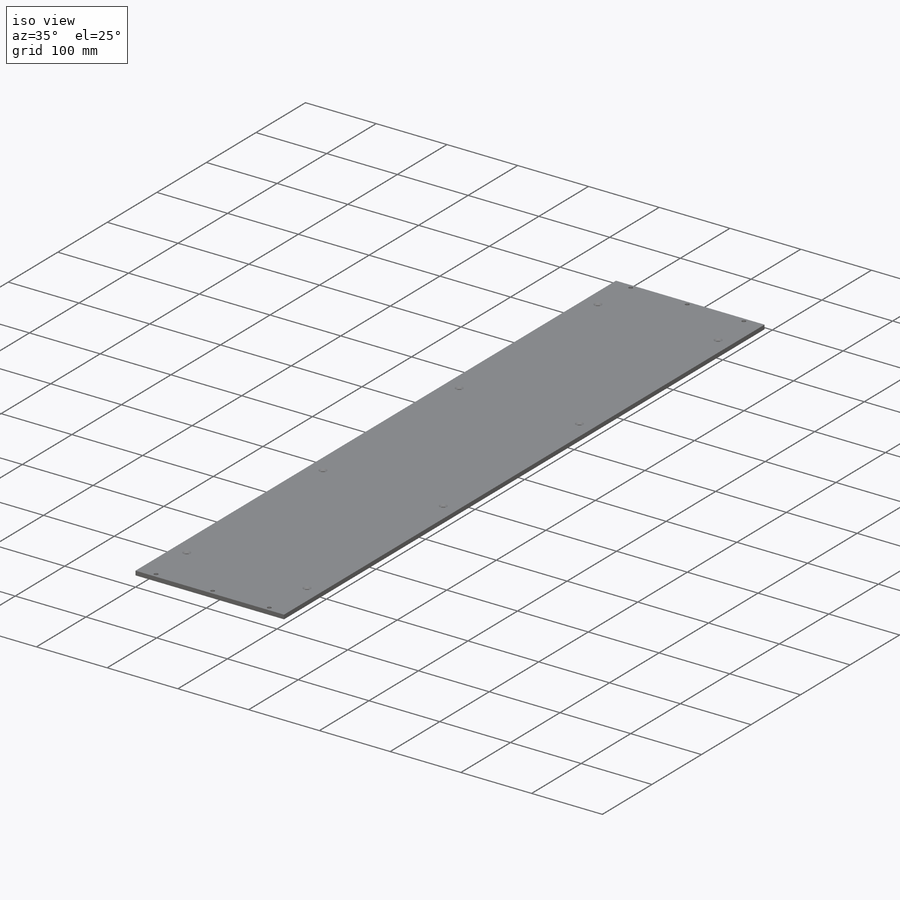
[diagram: iso view]
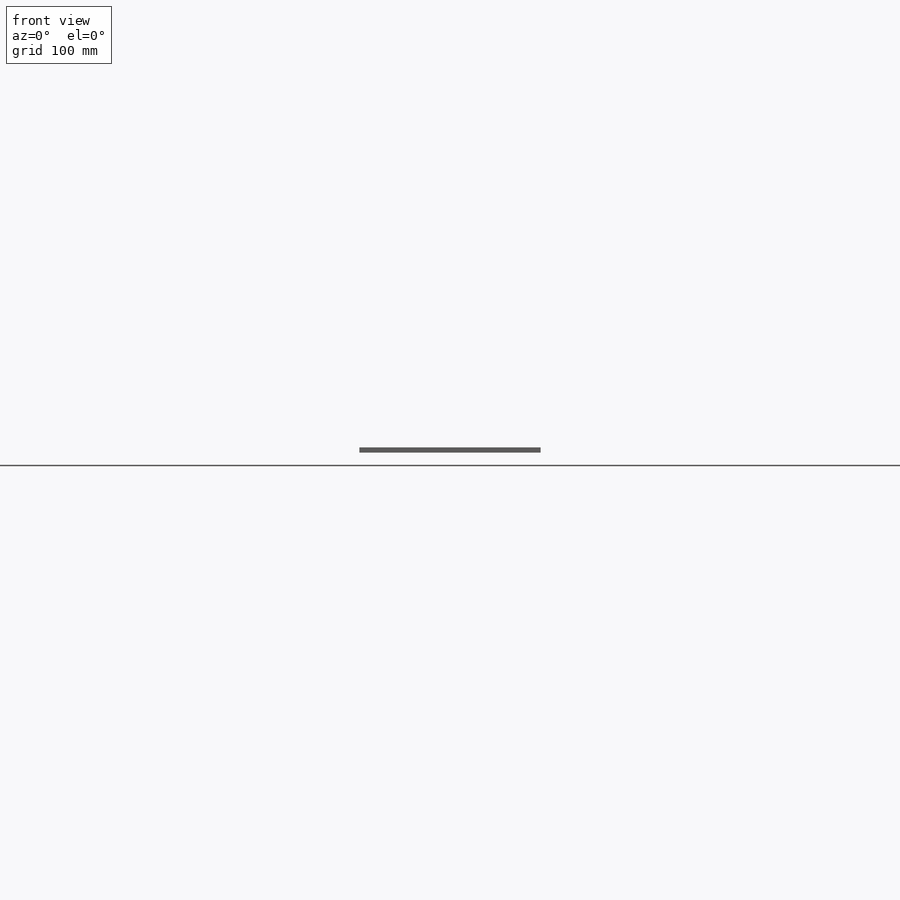
[diagram: front view]
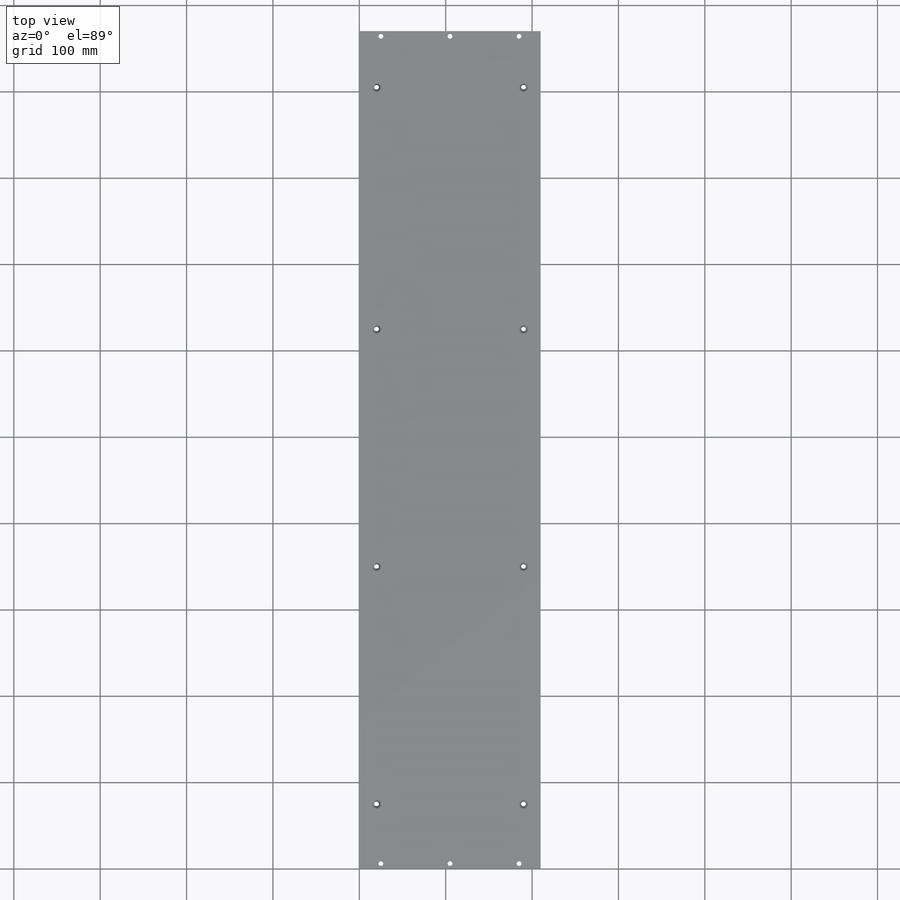
[diagram: top view]
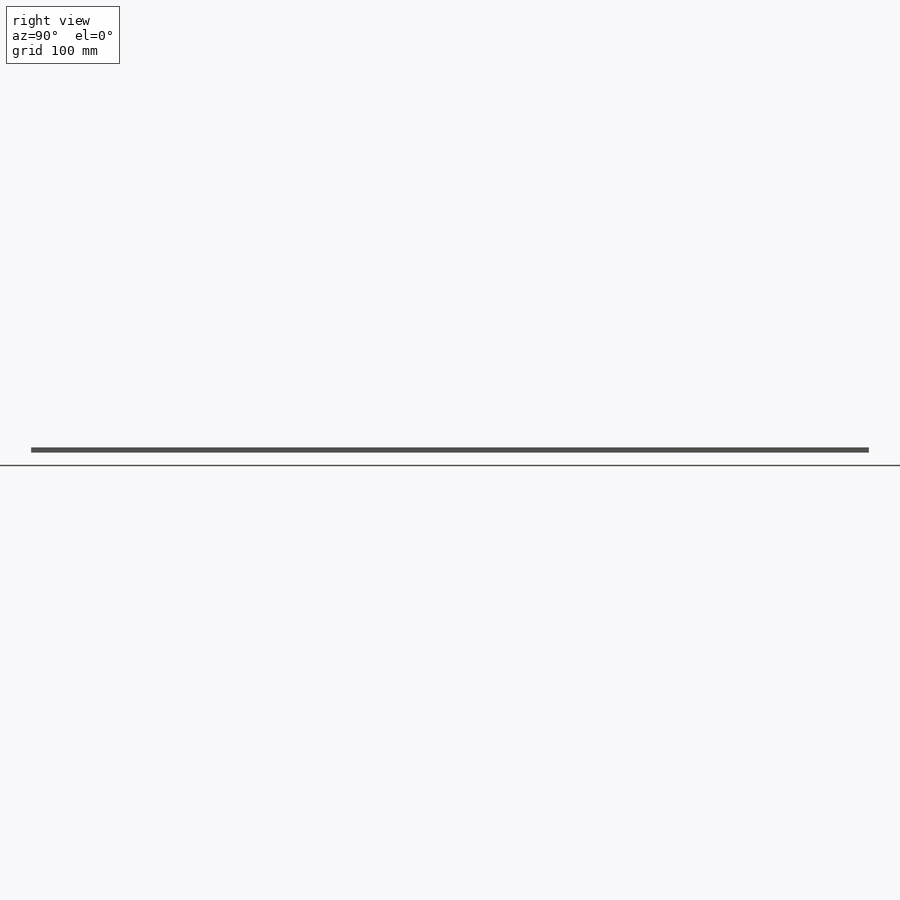
[diagram: right view]
SOLIDWORKS PART (.sldprt)
format: sldprt  version: not decoded by parser v0  size: 266,752 bytes
history: native  units: mm
features: sketch x9, hole x2, pattern_linear x2, plane x2, mirror x2, material x1, extrude x1 (+14 scaffold rows collapsed; 2 parser-record rows omitted)
feature tree (35):
  scaffold x14  (default folders/planes/origin — collapsed)
  material  "Material <not specified>"
  sketch  "Sketch1"  dims[D1=210.0mm D2=970.0mm]
  extrude  "Boss-Extrude1"  Depth=6mm
  hole  "CSK for M5 Flat Head Machine Screw1"  Diameter=5.5mm Depth=6mm
  sketch  "Sketch3"  dims[c1.D1=75.0mm c1.D2=~83.02671mm c2.D2=90.0deg c3.D2=20.0mm]
  sketch  "Sketch2"  dims[hole-wizard template sketch: 55 standard entries collapsed; hole parameters kept: c17.Thru Hole Depth=6.0mm c17.Near C'Sink Dia.=10.4mm c17.D4=~3.666174mm c17.Near C'Sink Angle=90.0deg]
  pattern_linear  "LPattern1"  Count1=3 Count2=1 Spacing1=275mm Spacing2=10mm
  pattern_linear  "LPattern2"  Count1=2 Count2=1 Spacing1=830mm Spacing2=10mm
  parser-record x2  (decoder bookkeeping rows leaked as tree rows — omitted from the tree; the rows remain in map.json)
  sketch  "Sketch4"
  sketch  "Sketch5"
  plane  "Plane1"
  mirror  "Mirror1"
  hole  "CSK for M5 Flat Head Machine Screw2"  Diameter=5.5mm Depth=6mm
  sketch  "Sketch7"  dims[c1.D1=6.0mm c1.D2=~14.009092mm c2.D2=90.0deg c3.D2=25.0mm c3.D3=25.0mm c3.D4=105.0mm]
  sketch  "Sketch6"  dims[hole-wizard template sketch: 55 standard entries collapsed; hole parameters kept: c17.Thru Hole Depth=6.0mm c17.Near C'Sink Dia.=10.4mm c17.D4=~3.666174mm c17.Near C'Sink Angle=90.0deg]
  sketch  "Sketch8"
  sketch  "Sketch9"
  plane  "Plane2"
  mirror  "Mirror2"
decode coverage: 10 of 16 modeling features carry decoded parameters
note: ~ marks probable driven/reference dimensions
note: suppression state not decoded; provenance and decode notes live in map.json
